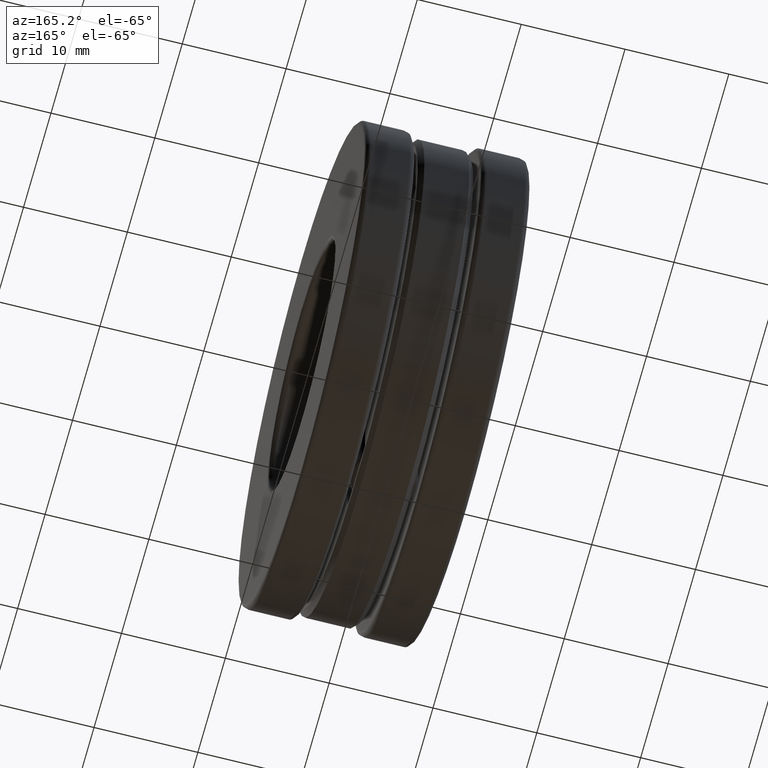
[diagram: clean part render]
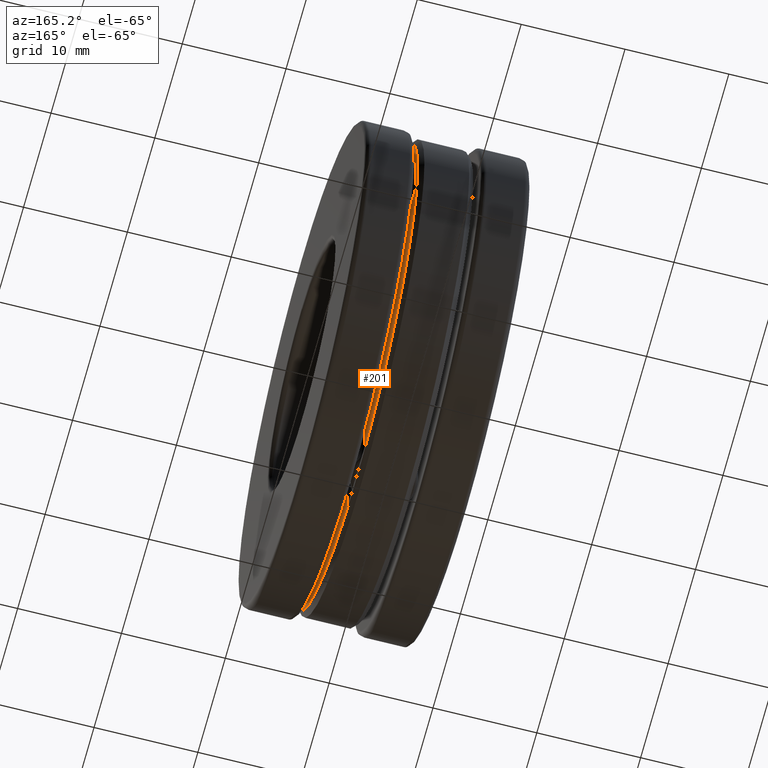
[diagram: same view with one face highlighted and labeled with its STEP entity id]
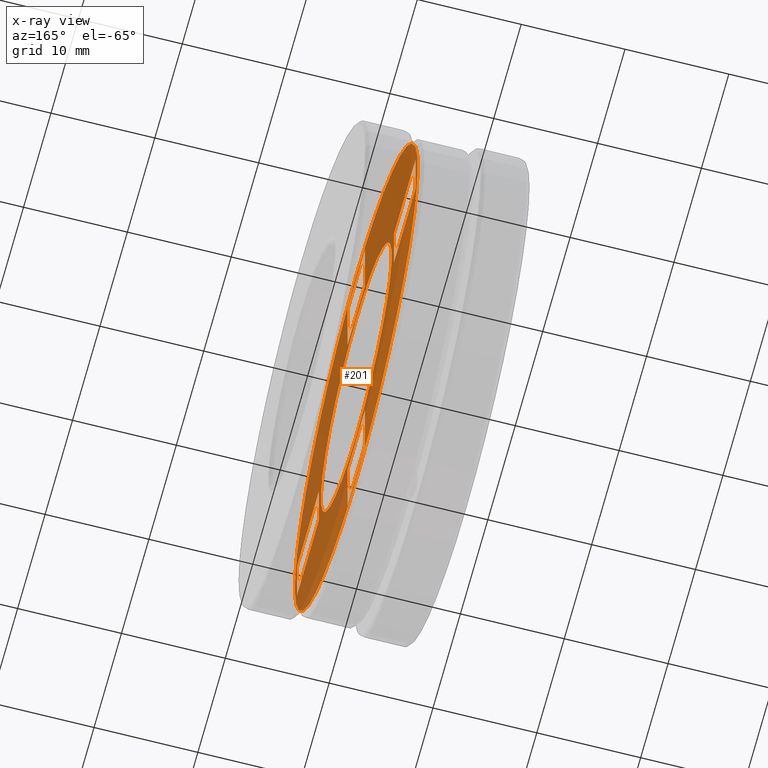
[diagram: x-ray of the same camera — body ghosted, the highlighted face saturated]
A machine part, auxiliary view. The second image highlights one B-rep face of the part: STEP entity #201.
The next image is the same camera in x-ray: the body ghosted, the highlighted face saturated — about 72% of this face is hidden behind the body in this view.
In plain terms, the highlighted planar face has unit normal (1, 0, 0).
Its self-contained STEP definition (entity closure, byte-faithful):
#26 = VERTEX_POINT ( 'NONE', #713 ) ;
#34 = DIRECTION ( 'NONE',  ( 0.0000000000000000000, 1.000000000000000000, 3.491481338843133000E-015 ) ) ;
#67 = CARTESIAN_POINT ( 'NONE',  ( 0.1050000000000000400, -0.1250000000000018900, 0.5387499999999996200 ) ) ;
#68 = CARTESIAN_POINT ( 'NONE',  ( 0.1050000000000000400, -0.5387500000000000600, -0.1250000000000000000 ) ) ;
#78 = CARTESIAN_POINT ( 'NONE',  ( 0.1050000000000000400, 4.804757777801474600E-018, 0.0000000000000000000 ) ) ;
#87 = VERTEX_POINT ( 'NONE', #752 ) ;
#90 = EDGE_LOOP ( 'NONE', ( #894, #421, #267, #412 ) ) ;
#91 = CARTESIAN_POINT ( 'NONE',  ( 0.1050000000000000400, 0.1250000000000087700, -0.8518749999999983800 ) ) ;
#104 = VERTEX_POINT ( 'NONE', #857 ) ;
#126 = EDGE_CURVE ( 'NONE', #665, #1448, #1142, .T. ) ;
#148 = CARTESIAN_POINT ( 'NONE',  ( 0.1050000000000000400, -0.1249999999999943500, -0.5387500000000013900 ) ) ;
#153 = VECTOR ( 'NONE', #202, 39.37007874015748100 ) ;
#156 = ORIENTED_EDGE ( 'NONE', *, *, #171, .F. ) ;
#163 = EDGE_CURVE ( 'NONE', #1448, #1404, #209, .T. ) ;
#169 = ORIENTED_EDGE ( 'NONE', *, *, #1235, .T. ) ;
#171 = EDGE_CURVE ( 'NONE', #26, #26, #757, .T. ) ;
#172 = EDGE_LOOP ( 'NONE', ( #156 ) ) ;
#173 = CARTESIAN_POINT ( 'NONE',  ( 0.1050000000000000400, -0.1250000000000018900, 0.5387499999999996200 ) ) ;
#176 = AXIS2_PLACEMENT_3D ( 'NONE', #78, #1122, #1332 ) ;
#186 = VECTOR ( 'NONE', #1089, 39.37007874015748100 ) ;
#193 = ORIENTED_EDGE ( 'NONE', *, *, #1156, .T. ) ;
#194 = CARTESIAN_POINT ( 'NONE',  ( 0.1050000000000000400, 0.1249999999999981300, 0.5387500000000005100 ) ) ;
#201 = ADVANCED_FACE ( 'NONE', ( #314, #957, #809, #865, #1403, #775 ), #393, .T. ) ;
#202 = DIRECTION ( 'NONE',  ( 0.0000000000000000000, -1.000000000000000000, -1.074762881589582600E-014 ) ) ;
#204 = EDGE_CURVE ( 'NONE', #212, #104, #1364, .T. ) ;
#209 = LINE ( 'NONE', #624, #1031 ) ;
#212 = VERTEX_POINT ( 'NONE', #414 ) ;
#238 = DIRECTION ( 'NONE',  ( 0.0000000000000000000, -3.000730202256738700E-015, 1.000000000000000000 ) ) ;
#248 = CARTESIAN_POINT ( 'NONE',  ( 0.1050000000000000400, 0.5387500000000000600, 1.471783106586621900E-016 ) ) ;
#261 = AXIS2_PLACEMENT_3D ( 'NONE', #1080, #1200, #1105 ) ;
#264 = ORIENTED_EDGE ( 'NONE', *, *, #1047, .T. ) ;
#267 = ORIENTED_EDGE ( 'NONE', *, *, #163, .F. ) ;
#314 = FACE_BOUND ( 'NONE', #1232, .T. ) ;
#342 = EDGE_CURVE ( 'NONE', #1391, #1195, #1068, .T. ) ;
#352 = CARTESIAN_POINT ( 'NONE',  ( 0.1050000000000000400, -0.1250000000000028000, 0.8518749999999993800 ) ) ;
#368 = DIRECTION ( 'NONE',  ( 0.0000000000000000000, -3.000730202256738700E-015, 1.000000000000000000 ) ) ;
#369 = VECTOR ( 'NONE', #644, 39.37007874015748100 ) ;
#376 = CARTESIAN_POINT ( 'NONE',  ( 0.1050000000000000400, -0.1250000000000028000, 0.8518749999999993800 ) ) ;
#393 = PLANE ( 'NONE',  #176 ) ;
#412 = ORIENTED_EDGE ( 'NONE', *, *, #126, .F. ) ;
#414 = CARTESIAN_POINT ( 'NONE',  ( 0.1050000000000000400, 0.5387500000000000600, -0.1250000000000000000 ) ) ;
#421 = ORIENTED_EDGE ( 'NONE', *, *, #574, .T. ) ;
#472 = EDGE_CURVE ( 'NONE', #1098, #503, #720, .T. ) ;
#481 = CARTESIAN_POINT ( 'NONE',  ( 0.1050000000000000400, 0.0000000000000000000, 0.5087500000000000400 ) ) ;
#490 = VECTOR ( 'NONE', #1208, 39.37007874015748100 ) ;
#494 = CARTESIAN_POINT ( 'NONE',  ( 0.1050000000000000400, 0.1249999999999981300, 0.5387500000000005100 ) ) ;
#503 = VERTEX_POINT ( 'NONE', #687 ) ;
#574 = EDGE_CURVE ( 'NONE', #1399, #1404, #1214, .T. ) ;
#576 = CARTESIAN_POINT ( 'NONE',  ( 0.1050000000000000400, -0.8518749999999998300, 0.1250000000000001400 ) ) ;
#581 = EDGE_LOOP ( 'NONE', ( #622, #264, #1421, #1298 ) ) ;
#600 = VECTOR ( 'NONE', #615, 39.37007874015748100 ) ;
#603 = ORIENTED_EDGE ( 'NONE', *, *, #1341, .F. ) ;
#608 = CARTESIAN_POINT ( 'NONE',  ( 0.1050000000000000400, 0.5387500000000000600, 0.1250000000000000000 ) ) ;
#614 = DIRECTION ( 'NONE',  ( 0.0000000000000000000, 1.000000000000000000, -4.907511365863949700E-016 ) ) ;
#615 = DIRECTION ( 'NONE',  ( 0.0000000000000000000, -2.731847993664263200E-016, 1.000000000000000000 ) ) ;
#622 = ORIENTED_EDGE ( 'NONE', *, *, #985, .T. ) ;
#624 = CARTESIAN_POINT ( 'NONE',  ( 0.1050000000000000400, -0.5387500000000000600, 0.1250000000000000000 ) ) ;
#631 = VECTOR ( 'NONE', #238, 39.37007874015748100 ) ;
#637 = CARTESIAN_POINT ( 'NONE',  ( 0.1050000000000000400, -0.5387500000000000600, -0.1250000000000000000 ) ) ;
#638 = ORIENTED_EDGE ( 'NONE', *, *, #1204, .F. ) ;
#644 = DIRECTION ( 'NONE',  ( 0.0000000000000000000, 1.000000000000000000, 3.764666138209559900E-015 ) ) ;
#650 = CARTESIAN_POINT ( 'NONE',  ( 0.1050000000000000400, -0.1249999999999912300, -0.8518750000000011600 ) ) ;
#651 = VECTOR ( 'NONE', #614, 39.37007874015748100 ) ;
#664 = LINE ( 'NONE', #91, #792 ) ;
#665 = VERTEX_POINT ( 'NONE', #1313 ) ;
#671 = EDGE_CURVE ( 'NONE', #665, #1399, #698, .T. ) ;
#678 = VECTOR ( 'NONE', #1226, 39.37007874015748100 ) ;
#687 = CARTESIAN_POINT ( 'NONE',  ( 0.1050000000000000400, 0.1249999999999971800, 0.8518750000000001600 ) ) ;
#694 = CARTESIAN_POINT ( 'NONE',  ( 0.1050000000000000400, -0.5387500000000000600, 0.1250000000000000000 ) ) ;
#696 = CARTESIAN_POINT ( 'NONE',  ( 0.1050000000000000400, -0.8518749999999998300, -0.1249999999999998500 ) ) ;
#698 = LINE ( 'NONE', #68, #186 ) ;
#713 = CARTESIAN_POINT ( 'NONE',  ( 0.1050000000000000200, 0.0000000000000000000, 0.8818749999999997400 ) ) ;
#720 = LINE ( 'NONE', #352, #975 ) ;
#727 = DIRECTION ( 'NONE',  ( 0.0000000000000000000, 0.0000000000000000000, 1.000000000000000000 ) ) ;
#742 = EDGE_CURVE ( 'NONE', #1203, #1098, #1291, .T. ) ;
#752 = CARTESIAN_POINT ( 'NONE',  ( 0.1050000000000000400, 0.1250000000000087700, -0.8518749999999983800 ) ) ;
#757 = CIRCLE ( 'NONE', #1255, 0.8818749999999997400 ) ;
#767 = CARTESIAN_POINT ( 'NONE',  ( 0.1050000000000000400, 0.1250000000000056600, -0.5387499999999987300 ) ) ;
#775 = FACE_BOUND ( 'NONE', #793, .T. ) ;
#792 = VECTOR ( 'NONE', #1139, 39.37007874015748100 ) ;
#793 = EDGE_LOOP ( 'NONE', ( #1112, #1279, #922, #603 ) ) ;
#806 = EDGE_CURVE ( 'NONE', #1371, #503, #1348, .T. ) ;
#809 = FACE_BOUND ( 'NONE', #581, .T. ) ;
#824 = CARTESIAN_POINT ( 'NONE',  ( 0.1050000000000000400, 0.8518749999999998300, 0.0000000000000000000 ) ) ;
#857 = CARTESIAN_POINT ( 'NONE',  ( 0.1050000000000000400, 0.8518749999999998300, -0.1250000000000001400 ) ) ;
#863 = CARTESIAN_POINT ( 'NONE',  ( 0.1050000000000000400, 0.8518749999999998300, 0.1249999999999998500 ) ) ;
#865 = FACE_BOUND ( 'NONE', #1392, .T. ) ;
#868 = LINE ( 'NONE', #148, #942 ) ;
#894 = ORIENTED_EDGE ( 'NONE', *, *, #671, .T. ) ;
#903 = VERTEX_POINT ( 'NONE', #608 ) ;
#922 = ORIENTED_EDGE ( 'NONE', *, *, #806, .F. ) ;
#942 = VECTOR ( 'NONE', #1289, 39.37007874015748100 ) ;
#944 = CARTESIAN_POINT ( 'NONE',  ( 0.1050000000000000400, -0.8518749999999998300, -0.1249999999999998500 ) ) ;
#950 = DIRECTION ( 'NONE',  ( 0.0000000000000000000, 2.731847993664263200E-016, -1.000000000000000000 ) ) ;
#957 = FACE_OUTER_BOUND ( 'NONE', #172, .T. ) ;
#972 = CARTESIAN_POINT ( 'NONE',  ( 0.1050000000000000400, -0.1249999999999943500, -0.5387500000000013900 ) ) ;
#975 = VECTOR ( 'NONE', #34, 39.37007874015748100 ) ;
#985 = EDGE_CURVE ( 'NONE', #903, #1356, #1132, .T. ) ;
#1008 = CARTESIAN_POINT ( 'NONE',  ( 0.1050000000000000400, -5.653913429549778300E-017, -0.1249999999999997400 ) ) ;
#1029 = VECTOR ( 'NONE', #727, 39.37007874015748100 ) ;
#1031 = VECTOR ( 'NONE', #1210, 39.37007874015748100 ) ;
#1047 = EDGE_CURVE ( 'NONE', #1356, #104, #1407, .T. ) ;
#1049 = VECTOR ( 'NONE', #368, 39.37007874015748100 ) ;
#1068 = LINE ( 'NONE', #767, #153 ) ;
#1069 = EDGE_CURVE ( 'NONE', #903, #212, #1148, .T. ) ;
#1080 = CARTESIAN_POINT ( 'NONE',  ( 0.1050000000000000400, 0.0000000000000000000, 0.0000000000000000000 ) ) ;
#1089 = DIRECTION ( 'NONE',  ( 0.0000000000000000000, -1.000000000000000000, 4.907511365863949700E-016 ) ) ;
#1092 = CIRCLE ( 'NONE', #261, 0.5087500000000000400 ) ;
#1095 = ORIENTED_EDGE ( 'NONE', *, *, #342, .F. ) ;
#1098 = VERTEX_POINT ( 'NONE', #376 ) ;
#1101 = CARTESIAN_POINT ( 'NONE',  ( 0.1050000000000000400, 0.1250000000000056600, -0.5387499999999987300 ) ) ;
#1103 = EDGE_CURVE ( 'NONE', #1414, #1414, #1092, .T. ) ;
#1105 = DIRECTION ( 'NONE',  ( 0.0000000000000000000, 0.0000000000000000000, 1.000000000000000000 ) ) ;
#1111 = LINE ( 'NONE', #67, #369 ) ;
#1112 = ORIENTED_EDGE ( 'NONE', *, *, #742, .T. ) ;
#1114 = LINE ( 'NONE', #1101, #490 ) ;
#1122 = DIRECTION ( 'NONE',  ( 1.000000000000000000, 0.0000000000000000000, 0.0000000000000000000 ) ) ;
#1132 = LINE ( 'NONE', #1322, #651 ) ;
#1139 = DIRECTION ( 'NONE',  ( 0.0000000000000000000, -1.000000000000000000, -1.047444401652940000E-014 ) ) ;
#1142 = LINE ( 'NONE', #637, #600 ) ;
#1148 = LINE ( 'NONE', #248, #1388 ) ;
#1156 = EDGE_CURVE ( 'NONE', #1391, #87, #1114, .T. ) ;
#1188 = DIRECTION ( 'NONE',  ( 0.0000000000000000000, 0.0000000000000000000, -1.000000000000000000 ) ) ;
#1195 = VERTEX_POINT ( 'NONE', #972 ) ;
#1200 = DIRECTION ( 'NONE',  ( -1.000000000000000000, -0.0000000000000000000, -0.0000000000000000000 ) ) ;
#1203 = VERTEX_POINT ( 'NONE', #173 ) ;
#1204 = EDGE_CURVE ( 'NONE', #1195, #1334, #868, .T. ) ;
#1208 = DIRECTION ( 'NONE',  ( 0.0000000000000000000, 9.983692879943004600E-015, -1.000000000000000000 ) ) ;
#1210 = DIRECTION ( 'NONE',  ( 0.0000000000000000000, -1.000000000000000000, 4.907511365863950700E-016 ) ) ;
#1214 = LINE ( 'NONE', #944, #1029 ) ;
#1215 = CARTESIAN_POINT ( 'NONE',  ( 0.1050000000000000400, 0.1250000000000056600, -0.5387499999999987300 ) ) ;
#1226 = DIRECTION ( 'NONE',  ( 0.0000000000000000000, 1.000000000000000000, -4.907511365863950700E-016 ) ) ;
#1232 = EDGE_LOOP ( 'NONE', ( #1346 ) ) ;
#1235 = EDGE_CURVE ( 'NONE', #87, #1334, #664, .T. ) ;
#1255 = AXIS2_PLACEMENT_3D ( 'NONE', #1347, #1460, #1457 ) ;
#1279 = ORIENTED_EDGE ( 'NONE', *, *, #472, .T. ) ;
#1289 = DIRECTION ( 'NONE',  ( 0.0000000000000000000, 9.983692879943004600E-015, -1.000000000000000000 ) ) ;
#1291 = LINE ( 'NONE', #1325, #631 ) ;
#1298 = ORIENTED_EDGE ( 'NONE', *, *, #1069, .F. ) ;
#1313 = CARTESIAN_POINT ( 'NONE',  ( 0.1050000000000000400, -0.5387500000000000600, -0.1250000000000000000 ) ) ;
#1322 = CARTESIAN_POINT ( 'NONE',  ( 0.1050000000000000400, 6.614864985110097200E-017, 0.1250000000000002500 ) ) ;
#1325 = CARTESIAN_POINT ( 'NONE',  ( 0.1050000000000000400, -0.1250000000000018900, 0.5387499999999996200 ) ) ;
#1332 = DIRECTION ( 'NONE',  ( 0.0000000000000000000, 0.0000000000000000000, -1.000000000000000000 ) ) ;
#1334 = VERTEX_POINT ( 'NONE', #650 ) ;
#1341 = EDGE_CURVE ( 'NONE', #1203, #1371, #1111, .T. ) ;
#1346 = ORIENTED_EDGE ( 'NONE', *, *, #1103, .T. ) ;
#1347 = CARTESIAN_POINT ( 'NONE',  ( 0.1050000000000000200, 0.0000000000000000000, 0.0000000000000000000 ) ) ;
#1348 = LINE ( 'NONE', #494, #1049 ) ;
#1356 = VERTEX_POINT ( 'NONE', #863 ) ;
#1364 = LINE ( 'NONE', #1008, #678 ) ;
#1371 = VERTEX_POINT ( 'NONE', #194 ) ;
#1388 = VECTOR ( 'NONE', #950, 39.37007874015748100 ) ;
#1391 = VERTEX_POINT ( 'NONE', #1215 ) ;
#1392 = EDGE_LOOP ( 'NONE', ( #193, #169, #638, #1095 ) ) ;
#1399 = VERTEX_POINT ( 'NONE', #696 ) ;
#1403 = FACE_BOUND ( 'NONE', #90, .T. ) ;
#1404 = VERTEX_POINT ( 'NONE', #576 ) ;
#1407 = LINE ( 'NONE', #824, #1445 ) ;
#1414 = VERTEX_POINT ( 'NONE', #481 ) ;
#1421 = ORIENTED_EDGE ( 'NONE', *, *, #204, .F. ) ;
#1445 = VECTOR ( 'NONE', #1188, 39.37007874015748100 ) ;
#1448 = VERTEX_POINT ( 'NONE', #694 ) ;
#1457 = DIRECTION ( 'NONE',  ( 0.0000000000000000000, 0.0000000000000000000, 1.000000000000000000 ) ) ;
#1460 = DIRECTION ( 'NONE',  ( -1.000000000000000000, -0.0000000000000000000, -0.0000000000000000000 ) ) ;